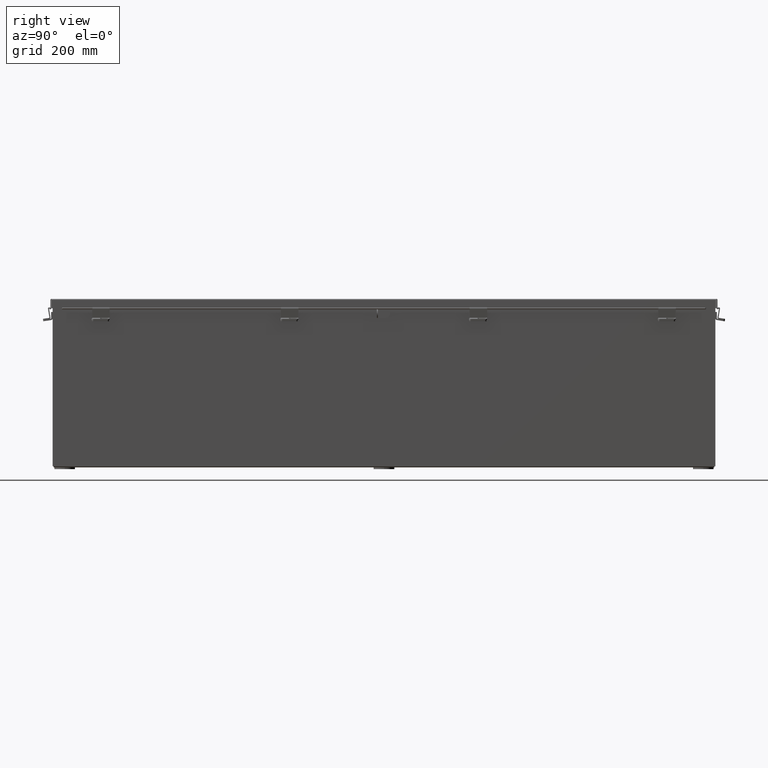
[diagram: clean part render]
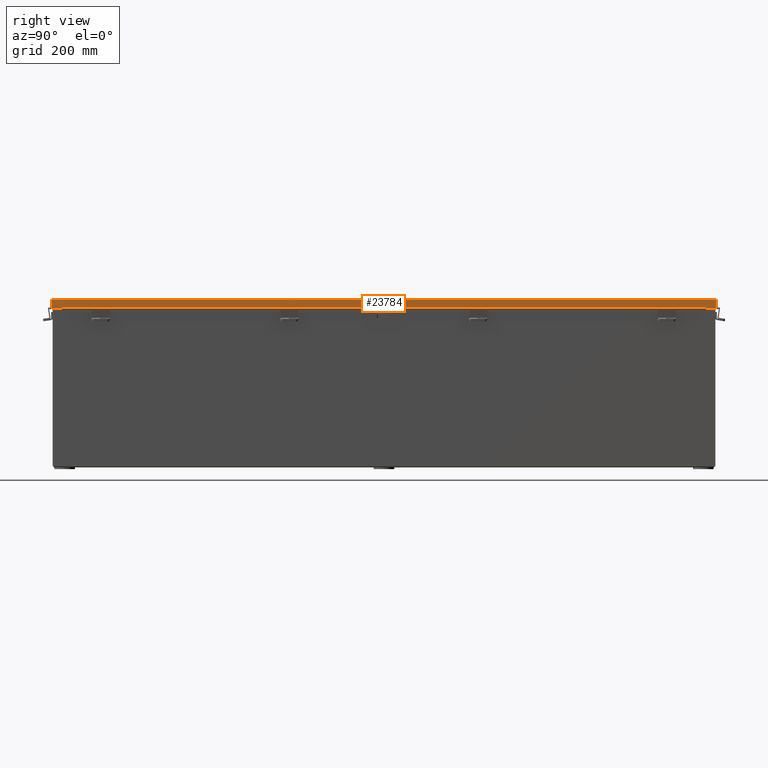
[diagram: same view with one face highlighted and labeled with its STEP entity id]
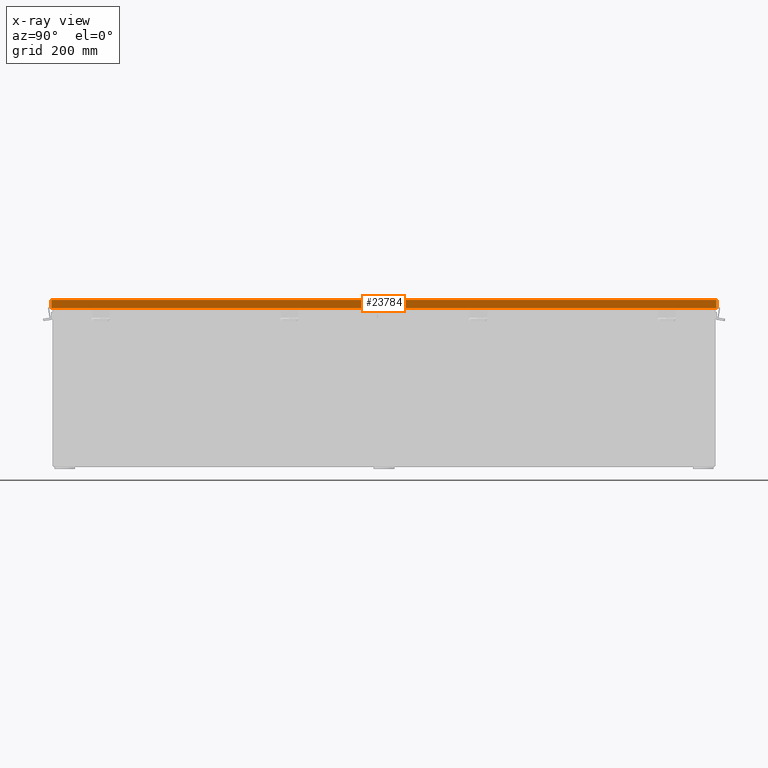
[diagram: x-ray of the same camera — body ghosted, the highlighted face saturated]
A machine part, right view. The second image highlights one B-rep face of the part: STEP entity #23784.
The next image is the same camera in x-ray: the body ghosted, the highlighted face saturated — about 0% of this face is hidden behind the body in this view.
In plain terms, the highlighted planar face has unit normal (-1, 0, -0).
Its self-contained STEP definition (entity closure, byte-faithful):
#176 = VECTOR ( 'NONE', #21193, 39.37007874015748100 ) ;
#700 = ORIENTED_EDGE ( 'NONE', *, *, #19796, .T. ) ;
#1223 = DIRECTION ( 'NONE',  ( -7.009925220119726500E-014, 5.916456789157559600E-031, 1.000000000000000000 ) ) ;
#1978 = CARTESIAN_POINT ( 'NONE',  ( -6.156250000000024000, -23.32447893218812900, 0.5967115427319000800 ) ) ;
#2264 = LINE ( 'NONE', #33676, #31198 ) ;
#2951 = VERTEX_POINT ( 'NONE', #26292 ) ;
#3321 = VERTEX_POINT ( 'NONE', #32532 ) ;
#3980 = LINE ( 'NONE', #6915, #11428 ) ;
#5273 = VECTOR ( 'NONE', #18017, 39.37007874015748100 ) ;
#6520 = ORIENTED_EDGE ( 'NONE', *, *, #35027, .F. ) ;
#6915 = CARTESIAN_POINT ( 'NONE',  ( -6.156250000000022200, 24.15625000000000000, 0.01300000000000010700 ) ) ;
#7223 = VERTEX_POINT ( 'NONE', #1978 ) ;
#8729 = VERTEX_POINT ( 'NONE', #9655 ) ;
#9123 = ORIENTED_EDGE ( 'NONE', *, *, #14858, .F. ) ;
#9185 = DIRECTION ( 'NONE',  ( 1.000000000000000000, -2.031568196046356500E-030, 3.569293475308540300E-015 ) ) ;
#9538 = CARTESIAN_POINT ( 'NONE',  ( -6.156250000000024000, 0.0000000000000000000, 0.6123000000000005100 ) ) ;
#9629 = CARTESIAN_POINT ( 'NONE',  ( -6.156250000000022200, -24.07447893218813600, 0.01300000000000010700 ) ) ;
#9655 = CARTESIAN_POINT ( 'NONE',  ( -6.156250000000024000, 23.32447893218813600, 0.5967115427318761000 ) ) ;
#9770 = VECTOR ( 'NONE', #26724, 39.37007874015748100 ) ;
#9864 = EDGE_CURVE ( 'NONE', #7223, #30202, #11061, .T. ) ;
#9901 = CARTESIAN_POINT ( 'NONE',  ( -6.156250000000024000, 23.32447893218813900, 0.5967115427318761000 ) ) ;
#11061 = LINE ( 'NONE', #20885, #34289 ) ;
#11428 = VECTOR ( 'NONE', #23724, 39.37007874015748100 ) ;
#11480 = VECTOR ( 'NONE', #16648, 39.37007874015748100 ) ;
#11693 = VERTEX_POINT ( 'NONE', #20887 ) ;
#12668 = ORIENTED_EDGE ( 'NONE', *, *, #18473, .F. ) ;
#12774 = CARTESIAN_POINT ( 'NONE',  ( -6.156250000000022200, -24.07447893218813600, -2.185478394931410600E-014 ) ) ;
#14858 = EDGE_CURVE ( 'NONE', #26185, #35834, #3980, .T. ) ;
#15467 = EDGE_CURVE ( 'NONE', #11693, #30202, #35966, .T. ) ;
#16120 = LINE ( 'NONE', #12774, #176 ) ;
#16442 = DIRECTION ( 'NONE',  ( -2.189427245366025900E-030, 1.000000000000000000, 0.0000000000000000000 ) ) ;
#16543 = CARTESIAN_POINT ( 'NONE',  ( -6.156250000000027500, 23.32447893218813600, 0.6122999999999982900 ) ) ;
#16648 = DIRECTION ( 'NONE',  ( 2.102977566036114200E-013, 4.930380657631299300E-031, -1.000000000000000000 ) ) ;
#17275 = EDGE_CURVE ( 'NONE', #26185, #11693, #16120, .T. ) ;
#17347 = FACE_OUTER_BOUND ( 'NONE', #33874, .T. ) ;
#18017 = DIRECTION ( 'NONE',  ( -2.189427245366025900E-030, 1.000000000000000000, 0.0000000000000000000 ) ) ;
#18473 = EDGE_CURVE ( 'NONE', #35834, #2951, #19505, .T. ) ;
#18971 = LINE ( 'NONE', #16543, #11480 ) ;
#19505 = LINE ( 'NONE', #27429, #33525 ) ;
#19744 = EDGE_CURVE ( 'NONE', #3321, #8729, #18971, .T. ) ;
#19796 = EDGE_CURVE ( 'NONE', #3321, #2951, #2264, .T. ) ;
#20439 = ORIENTED_EDGE ( 'NONE', *, *, #19744, .F. ) ;
#20885 = CARTESIAN_POINT ( 'NONE',  ( -6.156250000000024000, -23.32447893218812900, 0.5967115427319000800 ) ) ;
#20887 = CARTESIAN_POINT ( 'NONE',  ( -6.156250000000024000, -24.07447893218813200, 0.6122999999999982900 ) ) ;
#21193 = DIRECTION ( 'NONE',  ( -3.569293475308540300E-015, 1.084683744678886000E-030, 1.000000000000000000 ) ) ;
#23724 = DIRECTION ( 'NONE',  ( -2.189427245366025900E-030, 1.000000000000000000, -0.0000000000000000000 ) ) ;
#23784 = ADVANCED_FACE ( 'NONE', ( #17347 ), #28661, .F. ) ;
#26013 = CARTESIAN_POINT ( 'NONE',  ( -6.156250000000022200, 0.0000000000000000000, -2.185478394931410600E-014 ) ) ;
#26185 = VERTEX_POINT ( 'NONE', #9629 ) ;
#26292 = CARTESIAN_POINT ( 'NONE',  ( -6.156250000000024000, 24.07447893218813600, 0.6123000000000005100 ) ) ;
#26724 = DIRECTION ( 'NONE',  ( 2.189427245366025900E-030, -1.000000000000000000, -0.0000000000000000000 ) ) ;
#27429 = CARTESIAN_POINT ( 'NONE',  ( -6.156250000000022200, 24.07447893218813600, 0.0000000000000000000 ) ) ;
#27649 = CARTESIAN_POINT ( 'NONE',  ( -6.156250000000024000, -23.32447893218812500, 0.6123000000000222700 ) ) ;
#27699 = ORIENTED_EDGE ( 'NONE', *, *, #15467, .T. ) ;
#28071 = CARTESIAN_POINT ( 'NONE',  ( -6.156250000000022200, 24.07447893218813600, 0.01300000000000010700 ) ) ;
#28661 = PLANE ( 'NONE',  #31040 ) ;
#28788 = DIRECTION ( 'NONE',  ( 3.569293475308540300E-015, -1.084683744678885800E-030, -1.000000000000000000 ) ) ;
#30202 = VERTEX_POINT ( 'NONE', #27649 ) ;
#30214 = DIRECTION ( 'NONE',  ( -3.569293475308540300E-015, 1.084683744678886000E-030, 1.000000000000000000 ) ) ;
#30376 = LINE ( 'NONE', #9901, #9770 ) ;
#31040 = AXIS2_PLACEMENT_3D ( 'NONE', #26013, #9185, #28788 ) ;
#31198 = VECTOR ( 'NONE', #16442, 39.37007874015748100 ) ;
#32532 = CARTESIAN_POINT ( 'NONE',  ( -6.156250000000024000, 23.32447893218813600, 0.6122999999999982900 ) ) ;
#33525 = VECTOR ( 'NONE', #30214, 39.37007874015748100 ) ;
#33676 = CARTESIAN_POINT ( 'NONE',  ( -6.156250000000024000, 0.0000000000000000000, 0.6123000000000005100 ) ) ;
#33874 = EDGE_LOOP ( 'NONE', ( #20439, #700, #12668, #9123, #36088, #27699, #34100, #6520 ) ) ;
#34100 = ORIENTED_EDGE ( 'NONE', *, *, #9864, .F. ) ;
#34289 = VECTOR ( 'NONE', #1223, 39.37007874015748100 ) ;
#35027 = EDGE_CURVE ( 'NONE', #8729, #7223, #30376, .T. ) ;
#35834 = VERTEX_POINT ( 'NONE', #28071 ) ;
#35966 = LINE ( 'NONE', #9538, #5273 ) ;
#36088 = ORIENTED_EDGE ( 'NONE', *, *, #17275, .T. ) ;